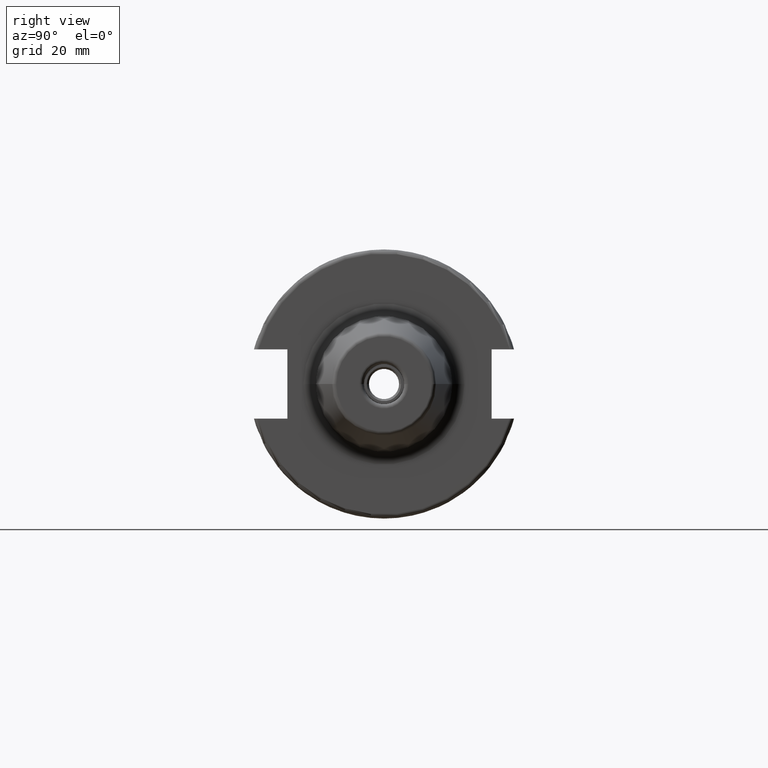
[diagram: clean part render]
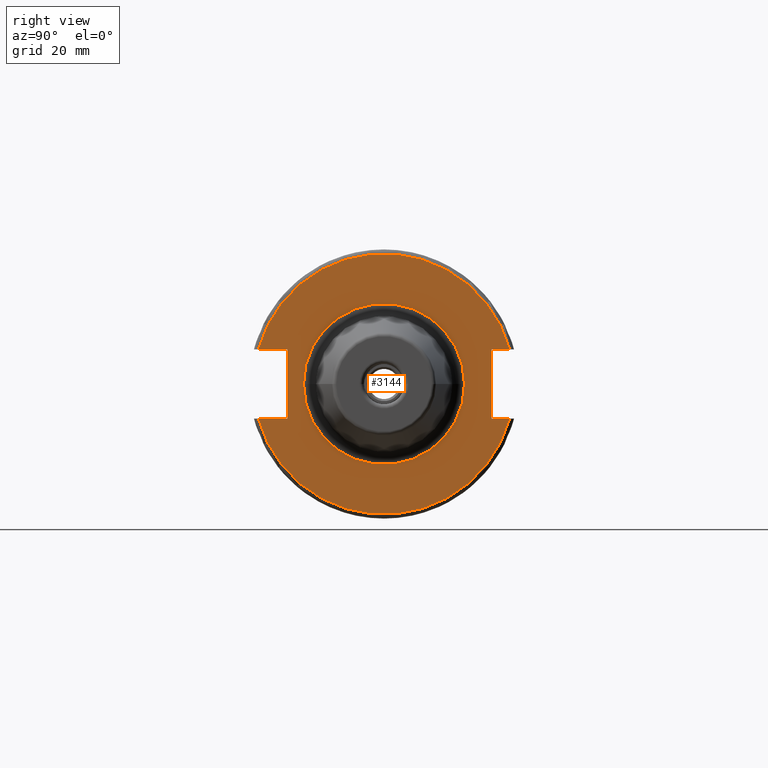
[diagram: same view with one face highlighted and labeled with its STEP entity id]
A machine part, right view. The second image highlights one B-rep face of the part: STEP entity #3144.
In plain terms, the highlighted planar face has unit normal (1, 0, 0).
Its self-contained STEP definition (entity closure, byte-faithful):
#494=DIRECTION('',(0.E0,1.E0,0.E0));
#495=VECTOR('',#494,2.697683037319E-1);
#496=CARTESIAN_POINT('',(7.5E-1,-1.167406099008E0,-3.22E-1));
#497=LINE('',#496,#495);
#498=DIRECTION('',(0.E0,0.E0,-1.E0));
#499=VECTOR('',#498,6.44E-1);
#500=CARTESIAN_POINT('',(7.5E-1,-8.976377952756E-1,3.22E-1));
#501=LINE('',#500,#499);
#502=DIRECTION('',(0.E0,1.E0,0.E0));
#503=VECTOR('',#502,2.697683037319E-1);
#504=CARTESIAN_POINT('',(7.5E-1,-1.167406099008E0,3.22E-1));
#505=LINE('',#504,#503);
#506=DIRECTION('',(0.E0,-1.E0,0.E0));
#507=VECTOR('',#506,1.674060990075E-1);
#508=CARTESIAN_POINT('',(7.5E-1,1.167406099008E0,3.22E-1));
#509=LINE('',#508,#507);
#510=DIRECTION('',(0.E0,0.E0,-1.E0));
#511=VECTOR('',#510,6.44E-1);
#512=CARTESIAN_POINT('',(7.5E-1,1.E0,3.22E-1));
#513=LINE('',#512,#511);
#514=DIRECTION('',(0.E0,-1.E0,0.E0));
#515=VECTOR('',#514,1.674060990075E-1);
#516=CARTESIAN_POINT('',(7.5E-1,1.167406099008E0,-3.22E-1));
#517=LINE('',#516,#515);
#518=CARTESIAN_POINT('',(7.5E-1,0.E0,0.E0));
#519=DIRECTION('',(1.E0,0.E0,0.E0));
#520=DIRECTION('',(0.E0,-1.E0,0.E0));
#521=AXIS2_PLACEMENT_3D('',#518,#519,#520);
#523=CARTESIAN_POINT('',(7.5E-1,0.E0,0.E0));
#524=DIRECTION('',(1.E0,0.E0,0.E0));
#525=DIRECTION('',(0.E0,1.E0,0.E0));
#526=AXIS2_PLACEMENT_3D('',#523,#524,#525);
#533=CARTESIAN_POINT('',(7.5E-1,0.E0,0.E0));
#534=DIRECTION('',(1.E0,0.E0,0.E0));
#535=DIRECTION('',(0.E0,-9.640017332845E-1,-2.658959537572E-1));
#536=AXIS2_PLACEMENT_3D('',#533,#534,#535);
#717=CARTESIAN_POINT('',(7.5E-1,1.167406099008E0,3.22E-1));
#728=CARTESIAN_POINT('',(7.5E-1,0.E0,0.E0));
#729=DIRECTION('',(1.E0,0.E0,0.E0));
#730=DIRECTION('',(0.E0,9.640017332845E-1,2.658959537572E-1));
#731=AXIS2_PLACEMENT_3D('',#728,#729,#730);
#733=CARTESIAN_POINT('',(7.5E-1,-1.167406099008E0,3.22E-1));
#803=CARTESIAN_POINT('',(7.5E-1,-1.167406099008E0,-3.22E-1));
#1235=CARTESIAN_POINT('',(7.5E-1,1.167406099008E0,-3.22E-1));
#2118=CARTESIAN_POINT('',(7.5E-1,1.E0,3.22E-1));
#2119=CARTESIAN_POINT('',(7.5E-1,1.E0,-3.22E-1));
#2120=VERTEX_POINT('',#2118);
#2121=VERTEX_POINT('',#2119);
#2140=CARTESIAN_POINT('',(7.5E-1,-8.976377952756E-1,3.22E-1));
#2141=CARTESIAN_POINT('',(7.5E-1,-8.976377952756E-1,-3.22E-1));
#2142=VERTEX_POINT('',#2140);
#2143=VERTEX_POINT('',#2141);
#2430=CARTESIAN_POINT('',(7.5E-1,-7.48E-1,0.E0));
#2431=CARTESIAN_POINT('',(7.5E-1,7.48E-1,0.E0));
#2432=VERTEX_POINT('',#2430);
#2433=VERTEX_POINT('',#2431);
#2475=VERTEX_POINT('',#803);
#2476=VERTEX_POINT('',#1235);
#2479=VERTEX_POINT('',#717);
#2480=VERTEX_POINT('',#733);
#3116=CARTESIAN_POINT('',(7.5E-1,0.E0,0.E0));
#3117=DIRECTION('',(1.E0,0.E0,0.E0));
#3118=DIRECTION('',(0.E0,0.E0,1.E0));
#3119=AXIS2_PLACEMENT_3D('',#3116,#3117,#3118);
#3120=PLANE('',#3119);
#3122=ORIENTED_EDGE('',*,*,#3121,.F.);
#3124=ORIENTED_EDGE('',*,*,#3123,.T.);
#3126=ORIENTED_EDGE('',*,*,#3125,.F.);
#3128=ORIENTED_EDGE('',*,*,#3127,.F.);
#3130=ORIENTED_EDGE('',*,*,#3129,.F.);
#3132=ORIENTED_EDGE('',*,*,#3131,.T.);
#3134=ORIENTED_EDGE('',*,*,#3133,.T.);
#3136=ORIENTED_EDGE('',*,*,#3135,.F.);
#3137=EDGE_LOOP('',(#3122,#3124,#3126,#3128,#3130,#3132,#3134,#3136));
#3138=FACE_OUTER_BOUND('',#3137,.F.);
#3139=ORIENTED_EDGE('',*,*,#3106,.T.);
#3141=ORIENTED_EDGE('',*,*,#3140,.T.);
#3142=EDGE_LOOP('',(#3139,#3141));
#3143=FACE_BOUND('',#3142,.F.);
#3144=ADVANCED_FACE('',(#3138,#3143),#3120,.T.);
#522=CIRCLE('',#521,7.48E-1);
#527=CIRCLE('',#526,7.48E-1);
#537=CIRCLE('',#536,1.211E0);
#732=CIRCLE('',#731,1.211E0);
#3106=EDGE_CURVE('',#2432,#2433,#522,.T.);
#3121=EDGE_CURVE('',#2475,#2476,#537,.T.);
#3123=EDGE_CURVE('',#2475,#2143,#497,.T.);
#3125=EDGE_CURVE('',#2142,#2143,#501,.T.);
#3127=EDGE_CURVE('',#2480,#2142,#505,.T.);
#3129=EDGE_CURVE('',#2479,#2480,#732,.T.);
#3131=EDGE_CURVE('',#2479,#2120,#509,.T.);
#3133=EDGE_CURVE('',#2120,#2121,#513,.T.);
#3135=EDGE_CURVE('',#2476,#2121,#517,.T.);
#3140=EDGE_CURVE('',#2433,#2432,#527,.T.);